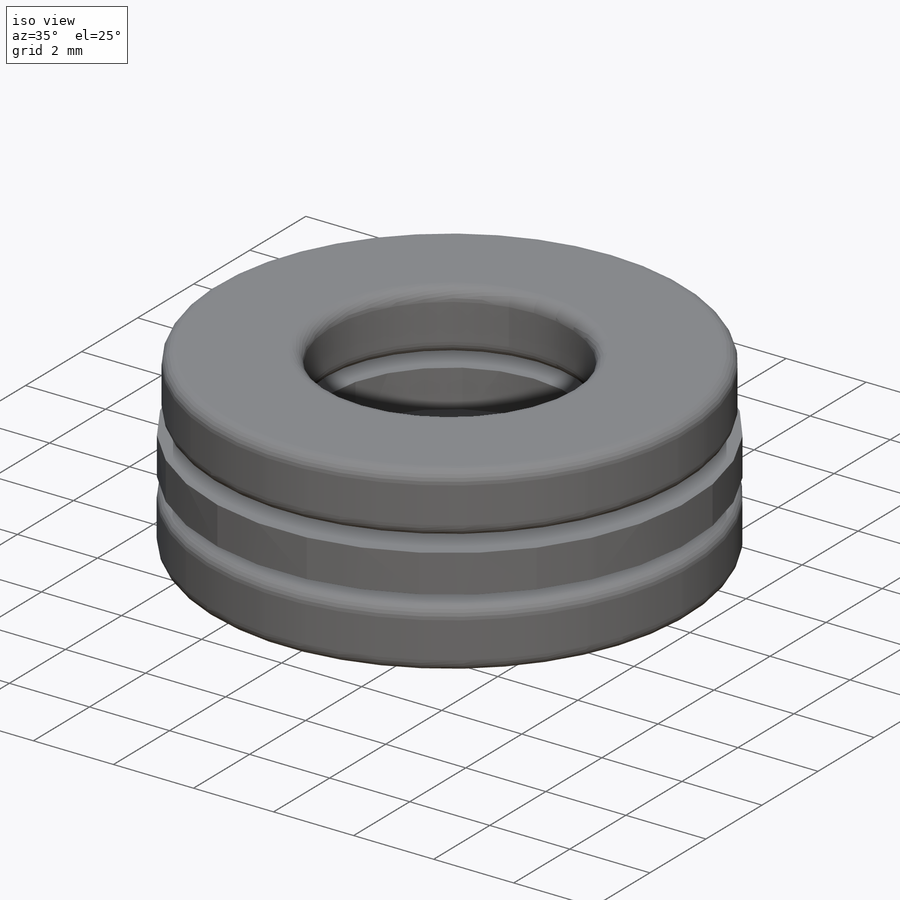
[diagram: iso view]
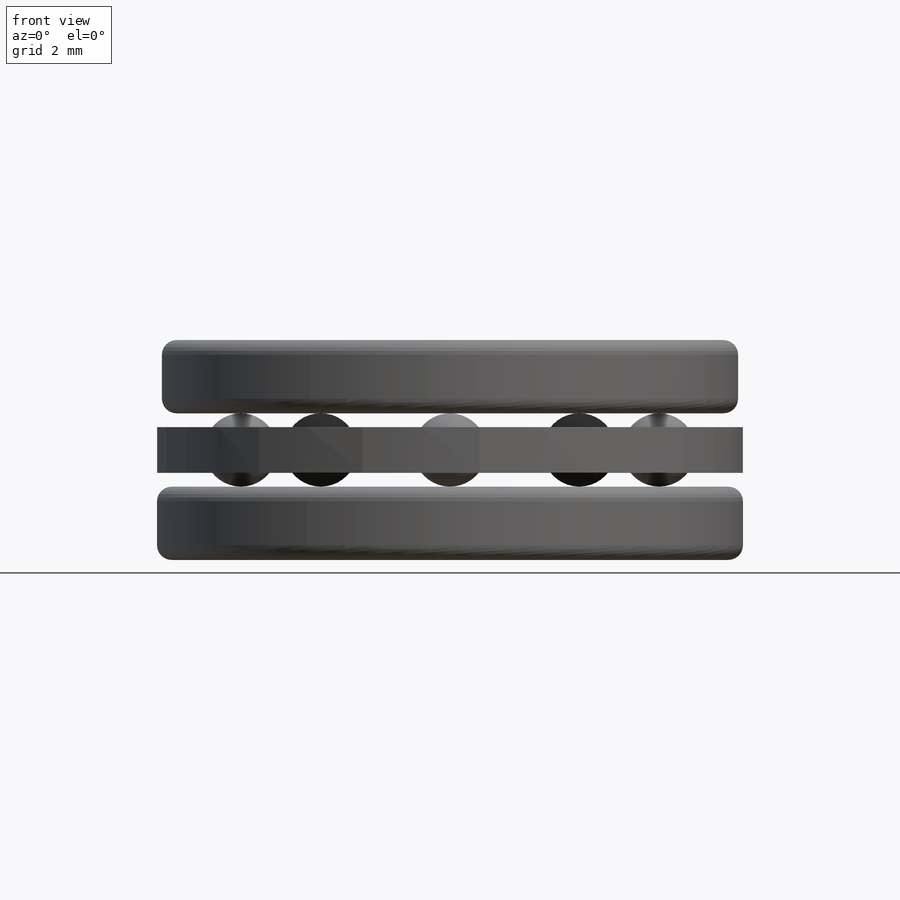
[diagram: front view]
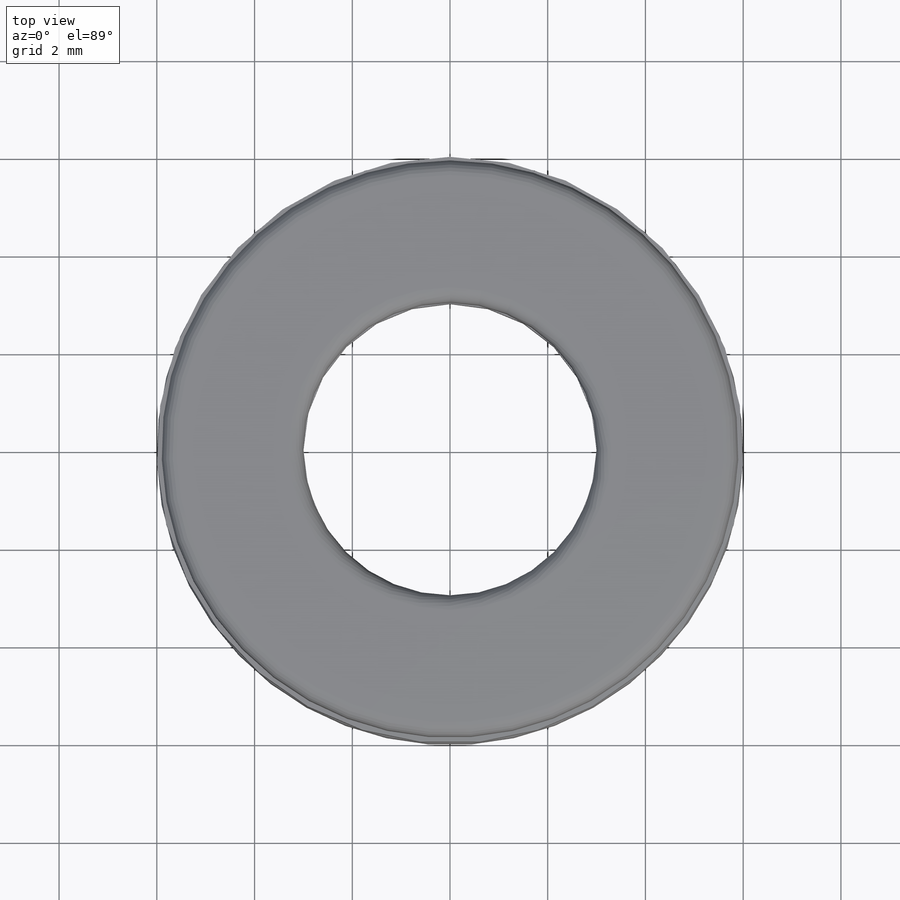
[diagram: top view]
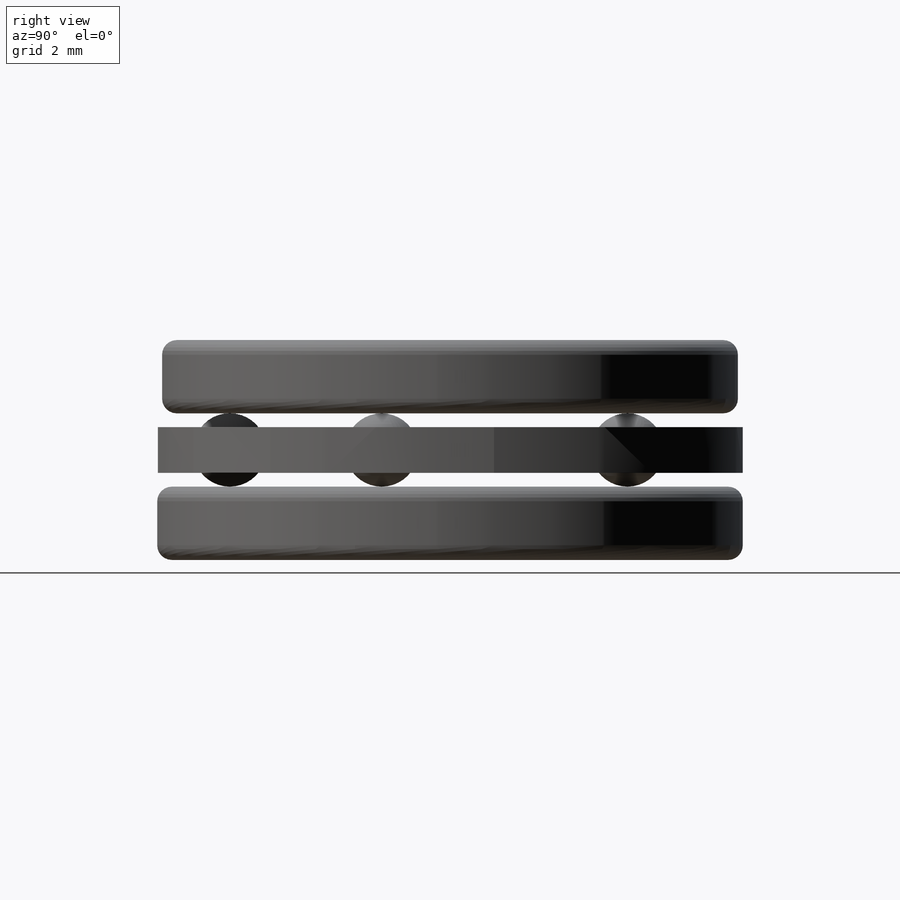
[diagram: right view]
SOLIDWORKS PART (.sldprt)
format: sldprt  version: not decoded by parser v0  size: 528,896 bytes
history: native  units: mm
features: sketch x4, revolve x3, pattern_circular x2, material x1, cut_revolve x1 (+13 scaffold rows collapsed)
feature tree (24):
  scaffold x13  (default folders/planes/origin — collapsed)
  material  "Alloy Steel"
  sketch  "Sketch1"  dims[OD=12.0mm Shaft Dia=6.0mm Th=4.5mm D1=1.5mm D2=0.9375mm D3=1.5mm]
  revolve  "Revolve1"  Angle=360deg
  sketch  "Sketch3"
  cut_revolve  "Cut-Revolve1"  Angle=360deg
  sketch  "Sketch2"
  revolve  "Revolve2"  Angle=360deg
  pattern_circular  "CirPattern1"  Count=5 Angle=72deg Balls=5
  pattern_circular  "CirPattern2"  Count=5 Angle=72deg
  sketch  "Sketch4"  dims[c1.R=0.2mm c1.r=0.3mm c1.D5=0.2mm c1.Ht=4.5mm c1.D1=9.2mm c1.D3=6.0mm c1.dia2=6.2mm c2.D5=12.0mm c2.dia1=11.8mm c2.D1=1.5mm]
  revolve  "Revolve3"  Angle=360deg
decode coverage: 8 of 10 modeling features carry decoded parameters
note: suppression state not decoded; provenance and decode notes live in map.json
